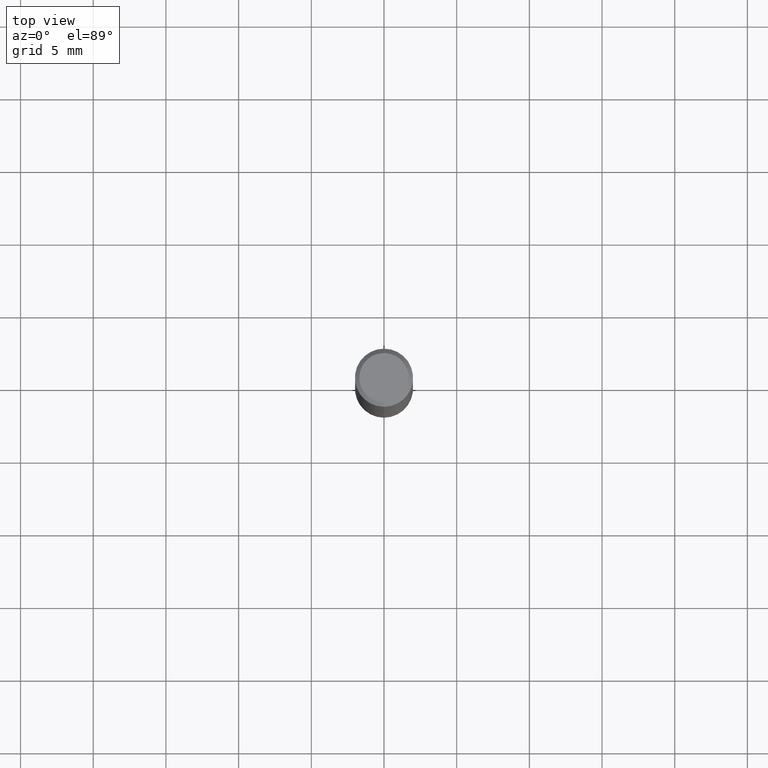
[diagram: clean part render]
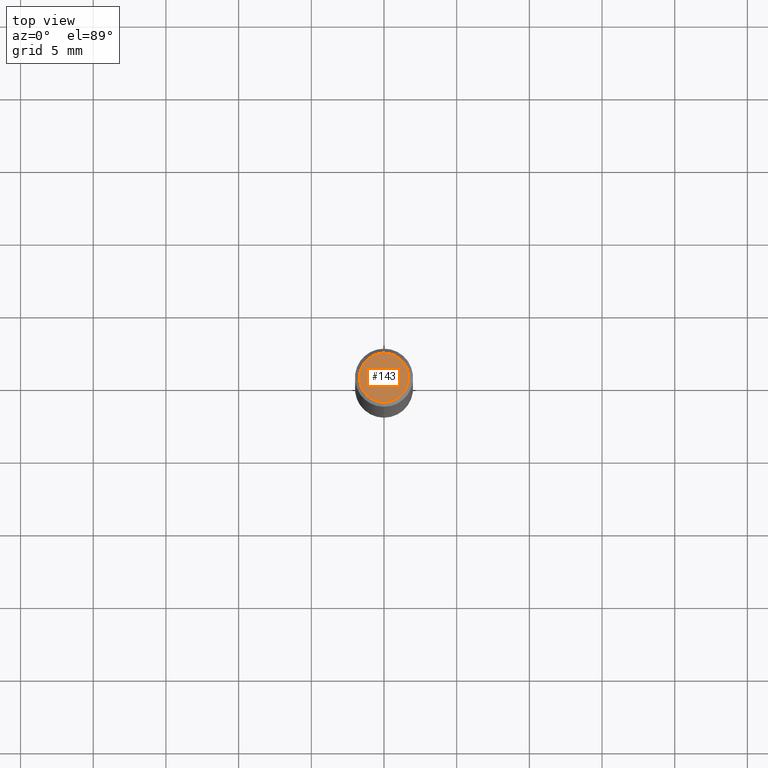
[diagram: same view with one face highlighted and labeled with its STEP entity id]
A machine part, top view. The second image highlights one B-rep face of the part: STEP entity #143.
In plain terms, the highlighted planar face has unit normal (-0, 0, 1).
Its self-contained STEP definition (entity closure, byte-faithful):
#143=ADVANCED_FACE('',(#378),#379,.T.);
#161=VERTEX_POINT('',#397);
#245=EDGE_CURVE('',#247,#161,#493,.T.);
#247=VERTEX_POINT('',#495);
#327=EDGE_CURVE('',#161,#247,#590,.T.);
#378=FACE_OUTER_BOUND('',#635,.T.);
#379=PLANE('',#636);
#397=CARTESIAN_POINT('',(2.08183080149804E-016,-1.7,0.00999999999999801));
#493=CIRCLE('',#785,1.7);
#495=CARTESIAN_POINT('',(0.0,1.7,0.00999999999999801));
#590=CIRCLE('',#901,1.7);
#635=EDGE_LOOP('',(#946,#947));
#636=AXIS2_PLACEMENT_3D('',#948,#949,#950);
#785=AXIS2_PLACEMENT_3D('',#1086,#1087,#1088);
#901=AXIS2_PLACEMENT_3D('',#1230,#1231,#1232);
#946=ORIENTED_EDGE('',*,*,#245,.F.);
#947=ORIENTED_EDGE('',*,*,#327,.F.);
#948=CARTESIAN_POINT('',(0.0,0.85,0.00999999999999801));
#949=DIRECTION('',(-0.0,0.0,1.0));
#950=DIRECTION('',(0.0,-1.0,0.0));
#1086=CARTESIAN_POINT('',(0.0,0.0,0.00999999999999801));
#1087=DIRECTION('',(0.0,0.0,-1.0));
#1088=DIRECTION('',(0.0,1.0,0.0));
#1230=CARTESIAN_POINT('',(0.0,0.0,0.00999999999999801));
#1231=DIRECTION('',(0.0,0.0,-1.0));
#1232=DIRECTION('',(0.0,1.0,0.0));